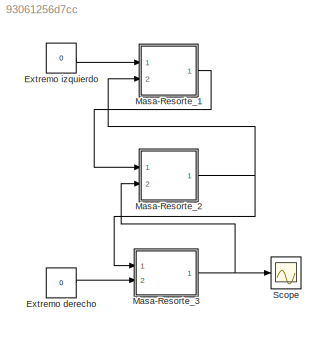
MODEL slx_93061256d7cc
KIND model
CONFIG AbsTol = auto
CONFIG FixedStep = auto
CONFIG MaxStep = auto
CONFIG MinStep = auto
CONFIG RelTol = 1e-3
CONFIG SampleTimeConstraint = Unconstrained
CONFIG Solver = ode45
CONFIG SolverMode = Auto
CONFIG SolverName = ode45
CONFIG StartTime = 0.0
CONFIG StopTime = 100
BLOCK [Constant] Extremo derecho
  Value = 0
BLOCK [Constant] Extremo izquierdo
  Value = 0
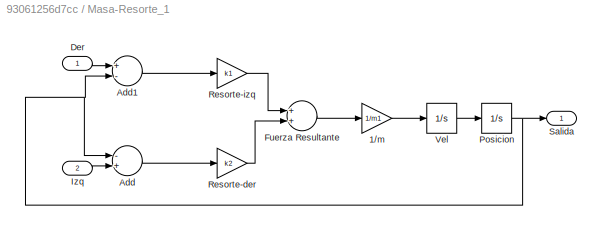
BLOCK [SubSystem] Masa-Resorte_1
  Ports = [2, 1]
  RequestExecContextInheritance = off
BLOCK [Gain] Masa-Resorte_1/1//m
  Gain = 1/m1
  OutDataTypeStr = Inherit: Inherit via internal rule
  ParamDataTypeStr = Inherit: Inherit via internal rule
  SaturateOnIntegerOverflow = off
BLOCK [Sum] Masa-Resorte_1/Add
  InputSameDT = off
  Inputs = -+
  OutDataTypeStr = Inherit: Inherit via internal rule
  Ports = [2, 1]
  SaturateOnIntegerOverflow = off
BLOCK [Sum] Masa-Resorte_1/Add1
  InputSameDT = off
  Inputs = +-
  OutDataTypeStr = Inherit: Inherit via internal rule
  Ports = [2, 1]
  SaturateOnIntegerOverflow = off
BLOCK [Inport] Masa-Resorte_1/Der
  IconDisplay = Port number
BLOCK [Sum] Masa-Resorte_1/Fuerza Resultante
  InputSameDT = off
  OutDataTypeStr = Inherit: Inherit via internal rule
  Ports = [2, 1]
  SaturateOnIntegerOverflow = off
BLOCK [Inport] Masa-Resorte_1/Izq
  IconDisplay = Port number
  Port = 2
BLOCK [Integrator] Masa-Resorte_1/Posicion
  InitialCondition = 1
  Ports = [1, 1]
BLOCK [Gain] Masa-Resorte_1/Resorte-der
  Gain = k2
  OutDataTypeStr = Inherit: Inherit via internal rule
  ParamDataTypeStr = Inherit: Inherit via internal rule
  SaturateOnIntegerOverflow = off
BLOCK [Gain] Masa-Resorte_1/Resorte-izq
  Gain = k1
  OutDataTypeStr = Inherit: Inherit via internal rule
  ParamDataTypeStr = Inherit: Inherit via internal rule
  SaturateOnIntegerOverflow = off
BLOCK [Outport] Masa-Resorte_1/Salida
  IconDisplay = Port number
BLOCK [Integrator] Masa-Resorte_1/Vel
  Ports = [1, 1]
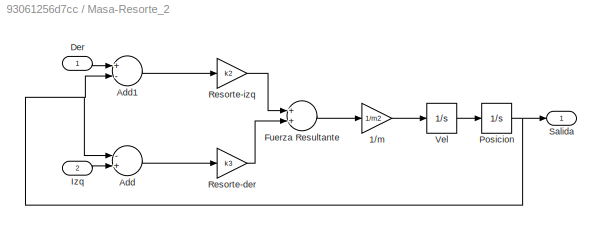
BLOCK [SubSystem] Masa-Resorte_2
  Ports = [2, 1]
  RequestExecContextInheritance = off
BLOCK [Gain] Masa-Resorte_2/1//m
  Gain = 1/m2
  OutDataTypeStr = Inherit: Inherit via internal rule
  ParamDataTypeStr = Inherit: Inherit via internal rule
  SaturateOnIntegerOverflow = off
BLOCK [Sum] Masa-Resorte_2/Add
  InputSameDT = off
  Inputs = -+
  OutDataTypeStr = Inherit: Inherit via internal rule
  Ports = [2, 1]
  SaturateOnIntegerOverflow = off
BLOCK [Sum] Masa-Resorte_2/Add1
  InputSameDT = off
  Inputs = +-
  OutDataTypeStr = Inherit: Inherit via internal rule
  Ports = [2, 1]
  SaturateOnIntegerOverflow = off
BLOCK [Inport] Masa-Resorte_2/Der
  IconDisplay = Port number
BLOCK [Sum] Masa-Resorte_2/Fuerza Resultante
  InputSameDT = off
  OutDataTypeStr = Inherit: Inherit via internal rule
  Ports = [2, 1]
  SaturateOnIntegerOverflow = off
BLOCK [Inport] Masa-Resorte_2/Izq
  IconDisplay = Port number
  Port = 2
BLOCK [Integrator] Masa-Resorte_2/Posicion
  Ports = [1, 1]
BLOCK [Gain] Masa-Resorte_2/Resorte-der
  Gain = k3
  OutDataTypeStr = Inherit: Inherit via internal rule
  ParamDataTypeStr = Inherit: Inherit via internal rule
  SaturateOnIntegerOverflow = off
BLOCK [Gain] Masa-Resorte_2/Resorte-izq
  Gain = k2
  OutDataTypeStr = Inherit: Inherit via internal rule
  ParamDataTypeStr = Inherit: Inherit via internal rule
  SaturateOnIntegerOverflow = off
BLOCK [Outport] Masa-Resorte_2/Salida
  IconDisplay = Port number
BLOCK [Integrator] Masa-Resorte_2/Vel
  Ports = [1, 1]
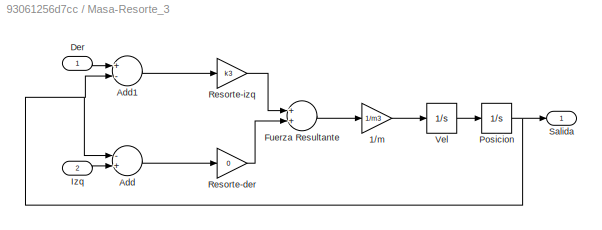
BLOCK [SubSystem] Masa-Resorte_3
  Ports = [2, 1]
  RequestExecContextInheritance = off
BLOCK [Gain] Masa-Resorte_3/1//m
  Gain = 1/m3
  OutDataTypeStr = Inherit: Inherit via internal rule
  ParamDataTypeStr = Inherit: Inherit via internal rule
  SaturateOnIntegerOverflow = off
BLOCK [Sum] Masa-Resorte_3/Add
  InputSameDT = off
  Inputs = -+
  OutDataTypeStr = Inherit: Inherit via internal rule
  Ports = [2, 1]
  SaturateOnIntegerOverflow = off
BLOCK [Sum] Masa-Resorte_3/Add1
  InputSameDT = off
  Inputs = +-
  OutDataTypeStr = Inherit: Inherit via internal rule
  Ports = [2, 1]
  SaturateOnIntegerOverflow = off
BLOCK [Inport] Masa-Resorte_3/Der
  IconDisplay = Port number
BLOCK [Sum] Masa-Resorte_3/Fuerza Resultante
  InputSameDT = off
  OutDataTypeStr = Inherit: Inherit via internal rule
  Ports = [2, 1]
  SaturateOnIntegerOverflow = off
BLOCK [Inport] Masa-Resorte_3/Izq
  IconDisplay = Port number
  Port = 2
BLOCK [Integrator] Masa-Resorte_3/Posicion
  Ports = [1, 1]
BLOCK [Gain] Masa-Resorte_3/Resorte-der
  Gain = 0
  OutDataTypeStr = Inherit: Inherit via internal rule
  ParamDataTypeStr = Inherit: Inherit via internal rule
  SaturateOnIntegerOverflow = off
BLOCK [Gain] Masa-Resorte_3/Resorte-izq
  Gain = k3
  OutDataTypeStr = Inherit: Inherit via internal rule
  ParamDataTypeStr = Inherit: Inherit via internal rule
  SaturateOnIntegerOverflow = off
BLOCK [Outport] Masa-Resorte_3/Salida
  IconDisplay = Port number
BLOCK [Integrator] Masa-Resorte_3/Vel
  Ports = [1, 1]
BLOCK [Scope] Scope
  Floating = off
  NumInputPorts = 1
  Ports = [1]
LINE Extremo derecho:1 -> Masa-Resorte_3:2
LINE Extremo izquierdo:1 -> Masa-Resorte_1:1
LINE Masa-Resorte_1/1//m:1 -> Masa-Resorte_1/Vel:1
LINE Masa-Resorte_1/Add1:1 -> Masa-Resorte_1/Resorte-izq:1
LINE Masa-Resorte_1/Add:1 -> Masa-Resorte_1/Resorte-der:1
LINE Masa-Resorte_1/Der:1 -> Masa-Resorte_1/Add1:1
LINE Masa-Resorte_1/Fuerza Resultante:1 -> Masa-Resorte_1/1//m:1
LINE Masa-Resorte_1/Izq:1 -> Masa-Resorte_1/Add:2
NET Masa-Resorte_1/Posicion:1 -> Masa-Resorte_1/Add1:2, Masa-Resorte_1/Add:1, Masa-Resorte_1/Salida:1
LINE Masa-Resorte_1/Resorte-der:1 -> Masa-Resorte_1/Fuerza Resultante:2
LINE Masa-Resorte_1/Resorte-izq:1 -> Masa-Resorte_1/Fuerza Resultante:1
LINE Masa-Resorte_1/Vel:1 -> Masa-Resorte_1/Posicion:1
LINE Masa-Resorte_1:1 -> Masa-Resorte_2:1
LINE Masa-Resorte_2/1//m:1 -> Masa-Resorte_2/Vel:1
LINE Masa-Resorte_2/Add1:1 -> Masa-Resorte_2/Resorte-izq:1
LINE Masa-Resorte_2/Add:1 -> Masa-Resorte_2/Resorte-der:1
LINE Masa-Resorte_2/Der:1 -> Masa-Resorte_2/Add1:1
LINE Masa-Resorte_2/Fuerza Resultante:1 -> Masa-Resorte_2/1//m:1
LINE Masa-Resorte_2/Izq:1 -> Masa-Resorte_2/Add:2
NET Masa-Resorte_2/Posicion:1 -> Masa-Resorte_2/Add1:2, Masa-Resorte_2/Add:1, Masa-Resorte_2/Salida:1
LINE Masa-Resorte_2/Resorte-der:1 -> Masa-Resorte_2/Fuerza Resultante:2
LINE Masa-Resorte_2/Resorte-izq:1 -> Masa-Resorte_2/Fuerza Resultante:1
LINE Masa-Resorte_2/Vel:1 -> Masa-Resorte_2/Posicion:1
NET Masa-Resorte_2:1 -> Masa-Resorte_1:2, Masa-Resorte_3:1
LINE Masa-Resorte_3/1//m:1 -> Masa-Resorte_3/Vel:1
LINE Masa-Resorte_3/Add1:1 -> Masa-Resorte_3/Resorte-izq:1
LINE Masa-Resorte_3/Add:1 -> Masa-Resorte_3/Resorte-der:1
LINE Masa-Resorte_3/Der:1 -> Masa-Resorte_3/Add1:1
LINE Masa-Resorte_3/Fuerza Resultante:1 -> Masa-Resorte_3/1//m:1
LINE Masa-Resorte_3/Izq:1 -> Masa-Resorte_3/Add:2
NET Masa-Resorte_3/Posicion:1 -> Masa-Resorte_3/Add1:2, Masa-Resorte_3/Add:1, Masa-Resorte_3/Salida:1
LINE Masa-Resorte_3/Resorte-der:1 -> Masa-Resorte_3/Fuerza Resultante:2
LINE Masa-Resorte_3/Resorte-izq:1 -> Masa-Resorte_3/Fuerza Resultante:1
LINE Masa-Resorte_3/Vel:1 -> Masa-Resorte_3/Posicion:1
NET Masa-Resorte_3:1 -> Masa-Resorte_2:2, Scope:1
note: NET lines group one-source signal fan-out (src -> all destinations, sorted); 1:1 wires keep LINE
